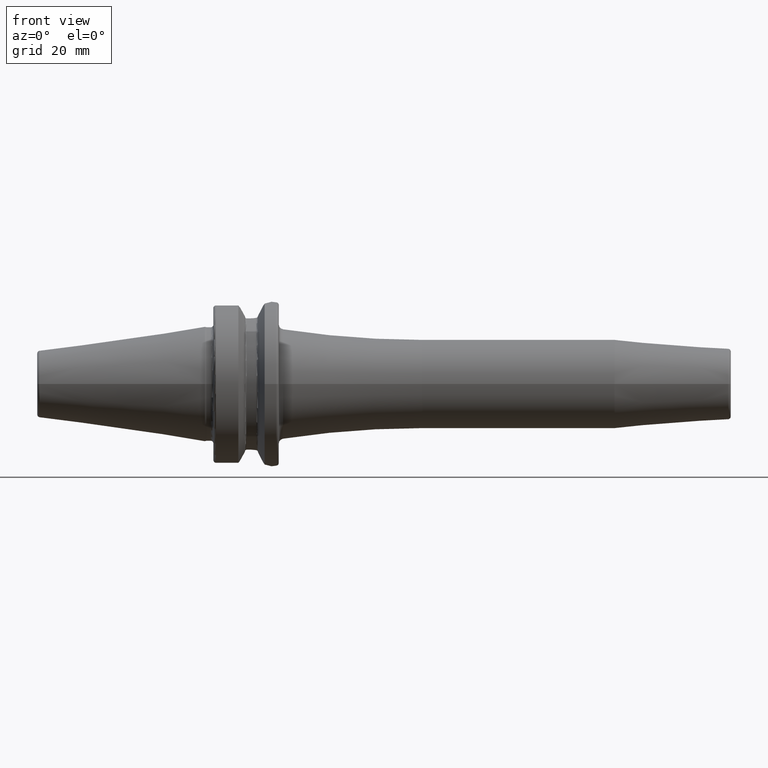
[diagram: clean part render]
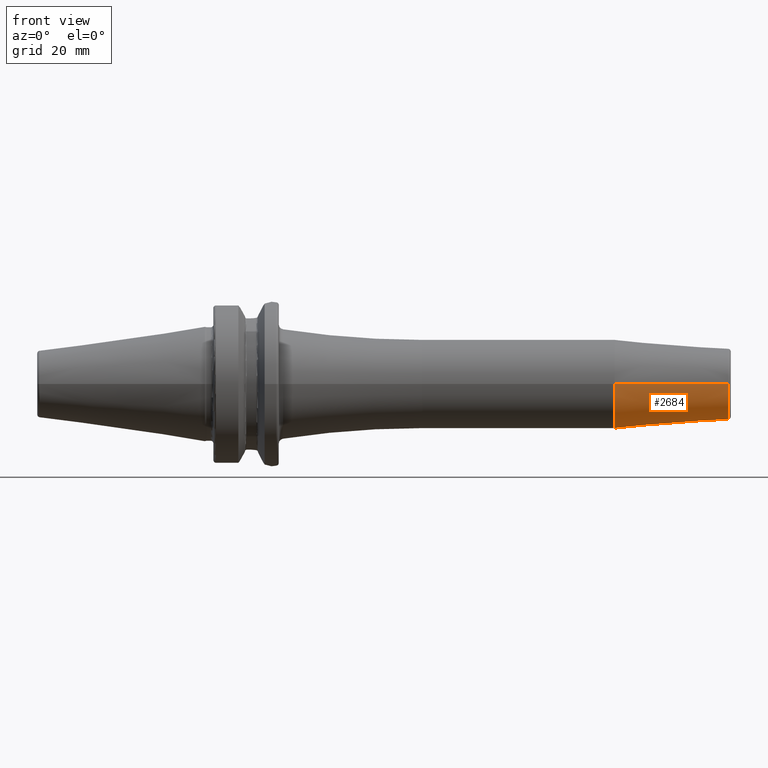
[diagram: same view with one face highlighted and labeled with its STEP entity id]
A machine part, front view. The second image highlights one B-rep face of the part: STEP entity #2684.
In plain terms, the highlighted conical surface has half-angle 4.5 deg.
Its self-contained STEP definition (entity closure, byte-faithful):
#885=CARTESIAN_POINT('',(1.555282834234E2,0.E0,0.E0));
#886=DIRECTION('',(-1.E0,0.E0,0.E0));
#887=DIRECTION('',(0.E0,1.E0,0.E0));
#888=AXIS2_PLACEMENT_3D('',#885,#886,#887);
#919=CARTESIAN_POINT('',(1.990784590957E2,0.E0,0.E0));
#920=DIRECTION('',(-1.E0,0.E0,0.E0));
#921=DIRECTION('',(0.E0,1.E0,0.E0));
#922=AXIS2_PLACEMENT_3D('',#919,#920,#921);
#924=DIRECTION('',(-9.969173337331E-1,7.845909572785E-2,7.699782046848E-14));
#925=VECTOR('',#924,4.368484145948E1);
#926=CARTESIAN_POINT('',(1.990784590957E2,1.357252684207E1,
-3.361555680333E-12));
#927=LINE('',#926,#925);
#928=DIRECTION('',(-9.969173337331E-1,-7.845909572785E-2,-7.691921293501E-14));
#929=VECTOR('',#928,4.368484145948E1);
#930=CARTESIAN_POINT('',(1.990784590957E2,-1.357252684207E1,
3.358121722696E-12));
#931=LINE('',#930,#929);
#1421=CARTESIAN_POINT('',(1.555282834234E2,1.7E1,0.E0));
#1422=CARTESIAN_POINT('',(1.555282834234E2,-1.7E1,0.E0));
#1423=VERTEX_POINT('',#1421);
#1424=VERTEX_POINT('',#1422);
#1425=CARTESIAN_POINT('',(1.990784590957E2,1.357252684207E1,0.E0));
#1426=CARTESIAN_POINT('',(1.990784590957E2,-1.357252684207E1,0.E0));
#1427=VERTEX_POINT('',#1425);
#1428=VERTEX_POINT('',#1426);
#2673=CARTESIAN_POINT('',(1.773033712596E2,0.E0,0.E0));
#2674=DIRECTION('',(-1.E0,0.E0,0.E0));
#2675=DIRECTION('',(0.E0,1.E0,0.E0));
#2676=AXIS2_PLACEMENT_3D('',#2673,#2674,#2675);
#2677=CONICAL_SURFACE('',#2676,1.528626342104E1,4.5E0);
#2678=ORIENTED_EDGE('',*,*,#2664,.F.);
#2679=ORIENTED_EDGE('',*,*,#2639,.T.);
#2680=ORIENTED_EDGE('',*,*,#2609,.T.);
#2681=ORIENTED_EDGE('',*,*,#2636,.F.);
#2682=EDGE_LOOP('',(#2678,#2679,#2680,#2681));
#2683=FACE_OUTER_BOUND('',#2682,.F.);
#2684=ADVANCED_FACE('',(#2683),#2677,.T.);
#889=CIRCLE('',#888,1.7E1);
#923=CIRCLE('',#922,1.357252684207E1);
#2609=EDGE_CURVE('',#1423,#1424,#889,.T.);
#2636=EDGE_CURVE('',#1428,#1424,#931,.T.);
#2639=EDGE_CURVE('',#1427,#1423,#927,.T.);
#2664=EDGE_CURVE('',#1427,#1428,#923,.T.);